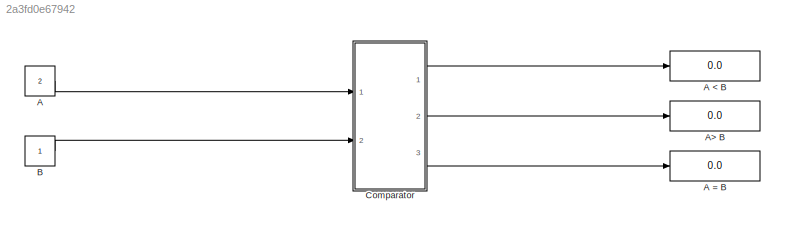
MODEL slx_2a3fd0e67942
KIND model
BLOCK [Constant] A
  OutDataTypeStr = uint8
  OutMax = [3]
  OutMin = [0]
  Value = 2
BLOCK [Display] A < B
  Decimation = 1
  Ports = [1]
BLOCK [Display] A = B
  Decimation = 1
  Ports = [1]
BLOCK [Display] A> B
  Decimation = 1
  Ports = [1]
BLOCK [Constant] B
  OutDataTypeStr = uint8
  OutMax = [3]
  OutMin = [0]
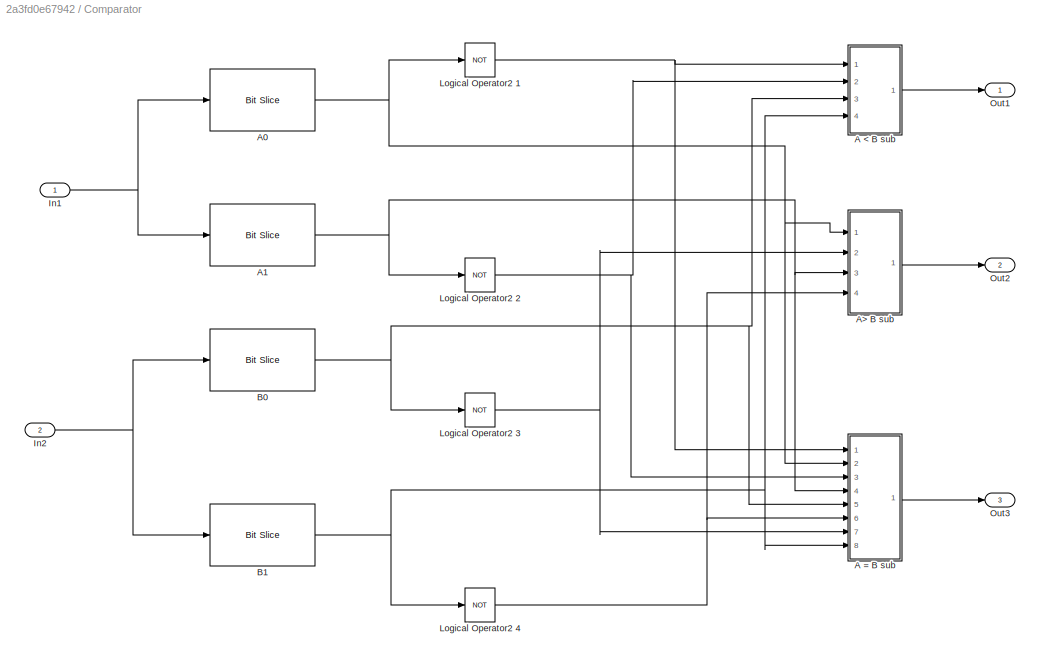
BLOCK [SubSystem] Comparator 
  Ports = [2, 3]
  RequestExecContextInheritance = off
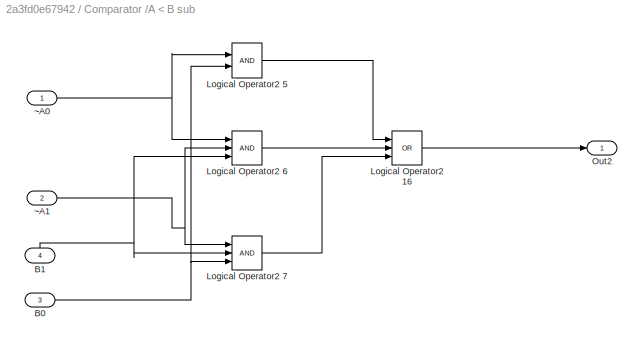
BLOCK [SubSystem] Comparator /A < B sub 
  Ports = [4, 1]
  RequestExecContextInheritance = off
BLOCK [Inport] Comparator /A < B sub /B0
  IconDisplay = Port number
  Port = 3
BLOCK [Inport] Comparator /A < B sub /B1
  IconDisplay = Port number
  Port = 4
BLOCK [Logic] Comparator /A < B sub /Logical Operator2 16
  AllPortsSameDT = off
  Inputs = 3
  Operator = OR
  OutDataTypeStr = boolean
  Ports = [3, 1]
BLOCK [Logic] Comparator /A < B sub /Logical Operator2 5
  AllPortsSameDT = off
  OutDataTypeStr = boolean
  Ports = [2, 1]
BLOCK [Logic] Comparator /A < B sub /Logical Operator2 6
  AllPortsSameDT = off
  Inputs = 3
  OutDataTypeStr = boolean
  Ports = [3, 1]
BLOCK [Logic] Comparator /A < B sub /Logical Operator2 7
  AllPortsSameDT = off
  Inputs = 3
  OutDataTypeStr = boolean
  Ports = [3, 1]
BLOCK [Outport] Comparator /A < B sub /Out2
  IconDisplay = Port number
BLOCK [Inport] Comparator /A < B sub /~A0
  IconDisplay = Port number
BLOCK [Inport] Comparator /A < B sub /~A1
  IconDisplay = Port number
  Port = 2
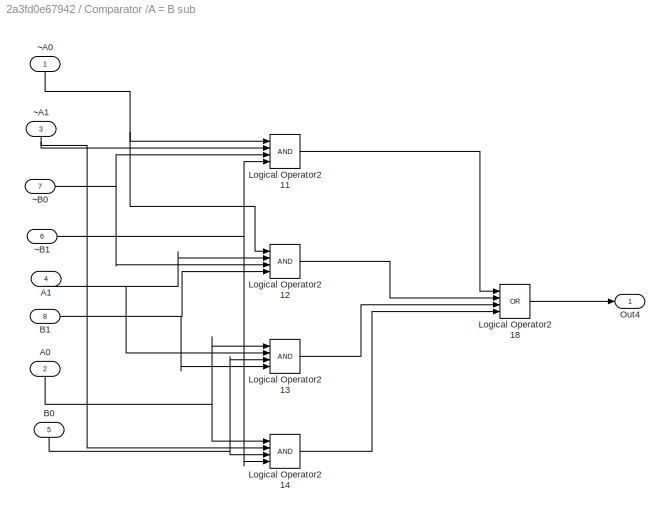
BLOCK [SubSystem] Comparator /A = B sub 
  Ports = [8, 1]
  RequestExecContextInheritance = off
BLOCK [Inport] Comparator /A = B sub /A0
  IconDisplay = Port number
  Port = 2
BLOCK [Inport] Comparator /A = B sub /A1
  IconDisplay = Port number
  Port = 4
BLOCK [Inport] Comparator /A = B sub /B0
  IconDisplay = Port number
  Port = 5
BLOCK [Inport] Comparator /A = B sub /B1
  IconDisplay = Port number
  Port = 8
BLOCK [Logic] Comparator /A = B sub /Logical Operator2 11
  AllPortsSameDT = off
  Inputs = 4
  OutDataTypeStr = boolean
  Ports = [4, 1]
BLOCK [Logic] Comparator /A = B sub /Logical Operator2 12
  AllPortsSameDT = off
  Inputs = 4
  OutDataTypeStr = boolean
  Ports = [4, 1]
BLOCK [Logic] Comparator /A = B sub /Logical Operator2 13
  AllPortsSameDT = off
  Inputs = 4
  OutDataTypeStr = boolean
  Ports = [4, 1]
BLOCK [Logic] Comparator /A = B sub /Logical Operator2 14
  AllPortsSameDT = off
  Inputs = 4
  OutDataTypeStr = boolean
  Ports = [4, 1]
BLOCK [Logic] Comparator /A = B sub /Logical Operator2 18
  AllPortsSameDT = off
  Inputs = 4
  Operator = OR
  OutDataTypeStr = boolean
  Ports = [4, 1]
BLOCK [Outport] Comparator /A = B sub /Out4
  IconDisplay = Port number
BLOCK [Inport] Comparator /A = B sub /~A0
  IconDisplay = Port number
BLOCK [Inport] Comparator /A = B sub /~A1
  IconDisplay = Port number
  Port = 3
BLOCK [Inport] Comparator /A = B sub /~B0
  IconDisplay = Port number
  Port = 7
BLOCK [Inport] Comparator /A = B sub /~B1
  IconDisplay = Port number
  Port = 6
BLOCK [Reference] Comparator /A0  REF=hdlsllib/HDL Operations/Bit Slice
  Ports = [1, 1]
  SourceBlock = hdlsllib/HDL Operations/Bit Slice
  SourceType = Bit Slice
  lidx = 1
  ridx = 1
BLOCK [Reference] Comparator /A1  REF=hdlsllib/HDL Operations/Bit Slice
  Ports = [1, 1]
  SourceBlock = hdlsllib/HDL Operations/Bit Slice
  SourceType = Bit Slice
  lidx = 0
  ridx = 0
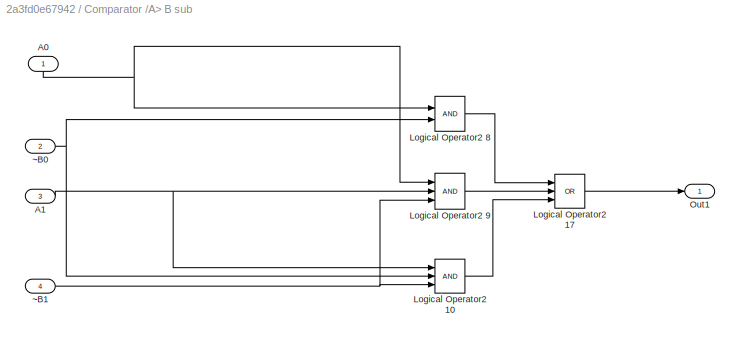
BLOCK [SubSystem] Comparator /A> B sub
  Ports = [4, 1]
  RequestExecContextInheritance = off
BLOCK [Inport] Comparator /A> B sub/A0
  IconDisplay = Port number
BLOCK [Inport] Comparator /A> B sub/A1
  IconDisplay = Port number
  Port = 3
BLOCK [Logic] Comparator /A> B sub/Logical Operator2 10
  AllPortsSameDT = off
  Inputs = 3
  OutDataTypeStr = boolean
  Ports = [3, 1]
BLOCK [Logic] Comparator /A> B sub/Logical Operator2 17
  AllPortsSameDT = off
  Inputs = 3
  Operator = OR
  OutDataTypeStr = boolean
  Ports = [3, 1]
BLOCK [Logic] Comparator /A> B sub/Logical Operator2 8
  AllPortsSameDT = off
  OutDataTypeStr = boolean
  Ports = [2, 1]
BLOCK [Logic] Comparator /A> B sub/Logical Operator2 9
  AllPortsSameDT = off
  Inputs = 3
  OutDataTypeStr = boolean
  Ports = [3, 1]
BLOCK [Outport] Comparator /A> B sub/Out1
  IconDisplay = Port number
BLOCK [Inport] Comparator /A> B sub/~B0
  IconDisplay = Port number
  Port = 2
BLOCK [Inport] Comparator /A> B sub/~B1
  IconDisplay = Port number
  Port = 4
BLOCK [Reference] Comparator /B0  REF=hdlsllib/HDL Operations/Bit Slice
  Ports = [1, 1]
  SourceBlock = hdlsllib/HDL Operations/Bit Slice
  SourceType = Bit Slice
  lidx = 1
  ridx = 1
BLOCK [Reference] Comparator /B1  REF=hdlsllib/HDL Operations/Bit Slice
  Ports = [1, 1]
  SourceBlock = hdlsllib/HDL Operations/Bit Slice
  SourceType = Bit Slice
  lidx = 0
  ridx = 0
BLOCK [Inport] Comparator /In1
  IconDisplay = Port number
  OutDataTypeStr = uint8
  SampleTime = 1
BLOCK [Inport] Comparator /In2
  IconDisplay = Port number
  OutDataTypeStr = uint8
  Port = 2
  SampleTime = 1
BLOCK [Logic] Comparator /Logical Operator2 1
  AllPortsSameDT = off
  Inputs = 3
  Operator = NOT
  OutDataTypeStr = boolean
  Ports = [1, 1]
BLOCK [Logic] Comparator /Logical Operator2 2
  AllPortsSameDT = off
  Inputs = 3
  Operator = NOT
  OutDataTypeStr = boolean
  Ports = [1, 1]
BLOCK [Logic] Comparator /Logical Operator2 3
  AllPortsSameDT = off
  Inputs = 3
  Operator = NOT
  OutDataTypeStr = boolean
  Ports = [1, 1]
BLOCK [Logic] Comparator /Logical Operator2 4
  AllPortsSameDT = off
  Inputs = 3
  Operator = NOT
  OutDataTypeStr = boolean
  Ports = [1, 1]
BLOCK [Outport] Comparator /Out1
  IconDisplay = Port number
BLOCK [Outport] Comparator /Out2
  IconDisplay = Port number
  Port = 2
BLOCK [Outport] Comparator /Out3
  IconDisplay = Port number
  Port = 3
LINE A:1 -> Comparator :1
LINE B:1 -> Comparator :2
NET Comparator /A < B sub /B0:1 -> Comparator /A < B sub /Logical Operator2 5:2, Comparator /A < B sub /Logical Operator2 7:3
NET Comparator /A < B sub /B1:1 -> Comparator /A < B sub /Logical Operator2 6:3, Comparator /A < B sub /Logical Operator2 7:2
LINE Comparator /A < B sub /Logical Operator2 16:1 -> Comparator /A < B sub /Out2:1
LINE Comparator /A < B sub /Logical Operator2 5:1 -> Comparator /A < B sub /Logical Operator2 16:1
LINE Comparator /A < B sub /Logical Operator2 6:1 -> Comparator /A < B sub /Logical Operator2 16:2
LINE Comparator /A < B sub /Logical Operator2 7:1 -> Comparator /A < B sub /Logical Operator2 16:3
NET Comparator /A < B sub /~A0:1 -> Comparator /A < B sub /Logical Operator2 5:1, Comparator /A < B sub /Logical Operator2 6:1
NET Comparator /A < B sub /~A1:1 -> Comparator /A < B sub /Logical Operator2 6:2, Comparator /A < B sub /Logical Operator2 7:1
LINE Comparator /A < B sub :1 -> Comparator /Out1:1
NET Comparator /A = B sub /A0:1 -> Comparator /A = B sub /Logical Operator2 13:1, Comparator /A = B sub /Logical Operator2 14:1
NET Comparator /A = B sub /A1:1 -> Comparator /A = B sub /Logical Operator2 12:2, Comparator /A = B sub /Logical Operator2 13:2
NET Comparator /A = B sub /B0:1 -> Comparator /A = B sub /Logical Operator2 13:3, Comparator /A = B sub /Logical Operator2 14:3
NET Comparator /A = B sub /B1:1 -> Comparator /A = B sub /Logical Operator2 12:4, Comparator /A = B sub /Logical Operator2 13:4
LINE Comparator /A = B sub /Logical Operator2 11:1 -> Comparator /A = B sub /Logical Operator2 18:1
LINE Comparator /A = B sub /Logical Operator2 12:1 -> Comparator /A = B sub /Logical Operator2 18:2
LINE Comparator /A = B sub /Logical Operator2 13:1 -> Comparator /A = B sub /Logical Operator2 18:3
LINE Comparator /A = B sub /Logical Operator2 14:1 -> Comparator /A = B sub /Logical Operator2 18:4
LINE Comparator /A = B sub /Logical Operator2 18:1 -> Comparator /A = B sub /Out4:1
NET Comparator /A = B sub /~A0:1 -> Comparator /A = B sub /Logical Operator2 11:1, Comparator /A = B sub /Logical Operator2 12:1
NET Comparator /A = B sub /~A1:1 -> Comparator /A = B sub /Logical Operator2 11:2, Comparator /A = B sub /Logical Operator2 14:2
NET Comparator /A = B sub /~B0:1 -> Comparator /A = B sub /Logical Operator2 11:3, Comparator /A = B sub /Logical Operator2 12:3
NET Comparator /A = B sub /~B1:1 -> Comparator /A = B sub /Logical Operator2 11:4, Comparator /A = B sub /Logical Operator2 14:4
LINE Comparator /A = B sub :1 -> Comparator /Out3:1
NET Comparator /A0:1 -> Comparator /A = B sub :2, Comparator /A> B sub:1, Comparator /Logical Operator2 1:1
NET Comparator /A1:1 -> Comparator /A = B sub :4, Comparator /A> B sub:3, Comparator /Logical Operator2 2:1
NET Comparator /A> B sub/A0:1 -> Comparator /A> B sub/Logical Operator2 8:1, Comparator /A> B sub/Logical Operator2 9:1
NET Comparator /A> B sub/A1:1 -> Comparator /A> B sub/Logical Operator2 10:1, Comparator /A> B sub/Logical Operator2 9:2
LINE Comparator /A> B sub/Logical Operator2 10:1 -> Comparator /A> B sub/Logical Operator2 17:3
LINE Comparator /A> B sub/Logical Operator2 17:1 -> Comparator /A> B sub/Out1:1
LINE Comparator /A> B sub/Logical Operator2 8:1 -> Comparator /A> B sub/Logical Operator2 17:1
LINE Comparator /A> B sub/Logical Operator2 9:1 -> Comparator /A> B sub/Logical Operator2 17:2
NET Comparator /A> B sub/~B0:1 -> Comparator /A> B sub/Logical Operator2 10:2, Comparator /A> B sub/Logical Operator2 8:2
NET Comparator /A> B sub/~B1:1 -> Comparator /A> B sub/Logical Operator2 10:3, Comparator /A> B sub/Logical Operator2 9:3
LINE Comparator /A> B sub:1 -> Comparator /Out2:1
NET Comparator /B0:1 -> Comparator /A < B sub :3, Comparator /A = B sub :5, Comparator /Logical Operator2 3:1
NET Comparator /B1:1 -> Comparator /A < B sub :4, Comparator /A = B sub :8, Comparator /Logical Operator2 4:1
NET Comparator /In1:1 -> Comparator /A0:1, Comparator /A1:1
NET Comparator /In2:1 -> Comparator /B0:1, Comparator /B1:1
NET Comparator /Logical Operator2 1:1 -> Comparator /A < B sub :1, Comparator /A = B sub :1
NET Comparator /Logical Operator2 2:1 -> Comparator /A < B sub :2, Comparator /A = B sub :3
NET Comparator /Logical Operator2 3:1 -> Comparator /A = B sub :7, Comparator /A> B sub:2
NET Comparator /Logical Operator2 4:1 -> Comparator /A = B sub :6, Comparator /A> B sub:4
LINE Comparator :1 -> A < B:1
LINE Comparator :2 -> A> B:1
LINE Comparator :3 -> A = B:1
note: NET lines group one-source signal fan-out (src -> all destinations, sorted); 1:1 wires keep LINE
